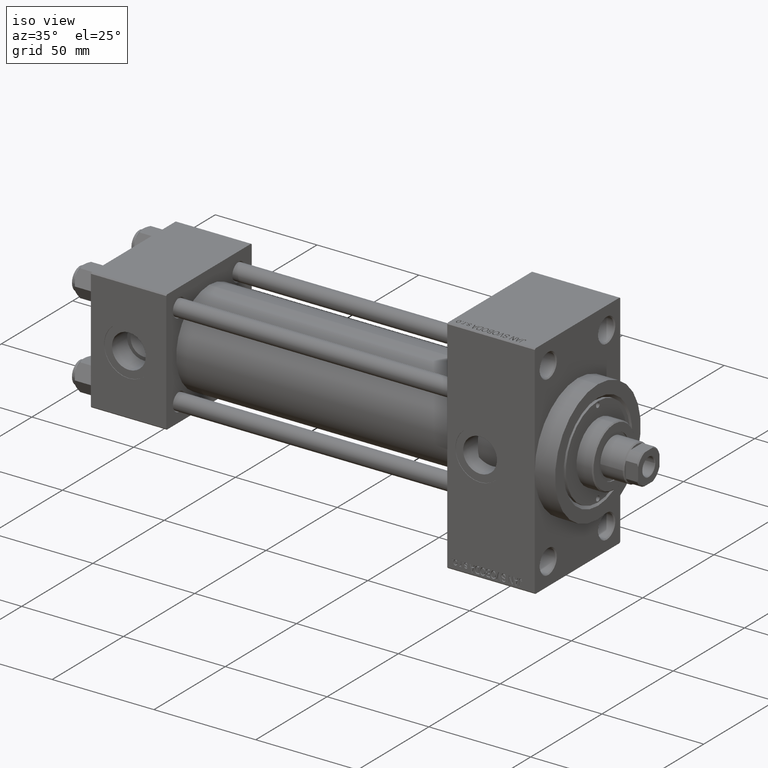
[diagram: clean part render]
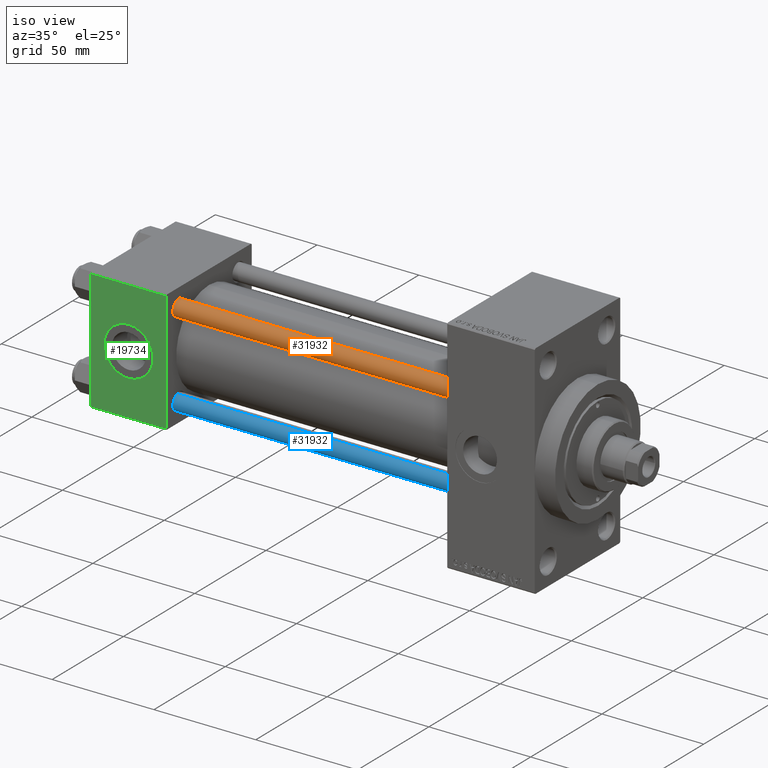
[diagram: same view with three faces highlighted in distinct colors, each labeled with its STEP entity id]
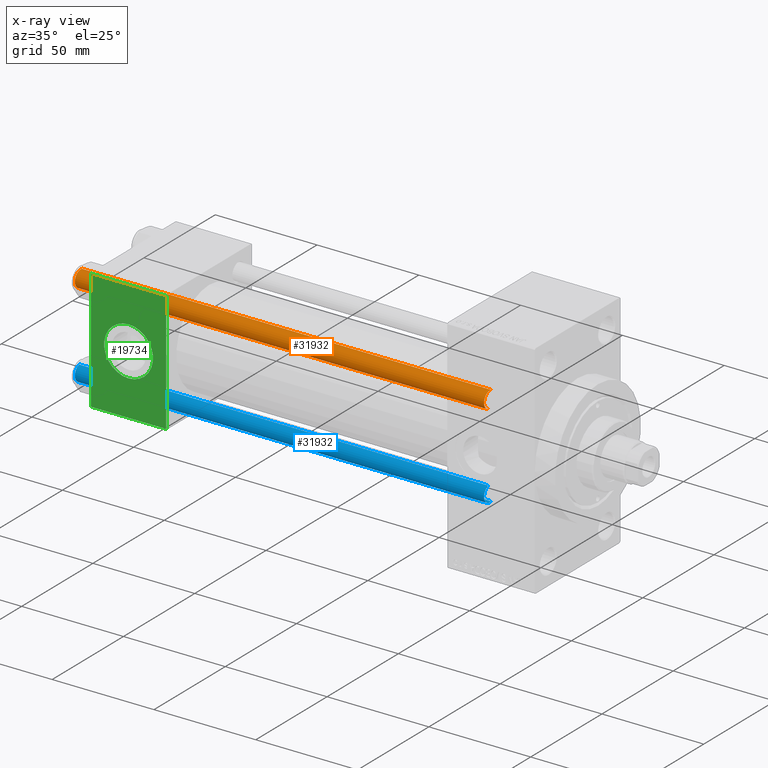
[diagram: x-ray of the same camera — body ghosted, the three highlighted faces saturated]
A machine part, iso view with three faces highlighted in distinct colors.
The next image is the same camera in x-ray (body ghosted, the three faces saturated) — at least one of them is partly hidden behind the body in this view.
Their STEP definitions:

[orange] entity #31932 — the highlighted cylindrical surface (edge-blend (fillet) strip) has radius 4 mm, axis along (1, 0, 0).
#1226 = CARTESIAN_POINT ( 'NONE',  ( 0.000000000000000000, 0.000000000000000000, 202.0000000000000000 ) ) ;
#1480 = CYLINDRICAL_SURFACE ( 'NONE', #7616, 4.000000000000000000 ) ;
#1617 = ORIENTED_EDGE ( 'NONE', *, *, #7759, .T. ) ;
#6934 = EDGE_LOOP ( 'NONE', ( #32972, #7963, #1617, #47425 ) ) ;
#7370 = AXIS2_PLACEMENT_3D ( 'NONE', #26897, #8624, #42653 ) ;
#7616 = AXIS2_PLACEMENT_3D ( 'NONE', #1226, #43292, #8504 ) ;
#7759 = EDGE_CURVE ( 'NONE', #14688, #46538, #37458, .T. ) ;
#7963 = ORIENTED_EDGE ( 'NONE', *, *, #48045, .T. ) ;
#8504 = DIRECTION ( 'NONE',  ( -1.000000000000000000, 0.000000000000000000, 0.000000000000000000 ) ) ;
#8624 = DIRECTION ( 'NONE',  ( 0.000000000000000000, 0.000000000000000000, -1.000000000000000000 ) ) ;
#8968 = DIRECTION ( 'NONE',  ( 1.000000000000000000, 0.000000000000000000, 0.000000000000000000 ) ) ;
#11984 = CARTESIAN_POINT ( 'NONE',  ( 0.000000000000000000, 0.000000000000000000, 0.5000000000000004441 ) ) ;
#12202 = CARTESIAN_POINT ( 'NONE',  ( 4.000000000000000000, 4.898587196589412829E-16, 202.0000000000000000 ) ) ;
#14636 = VERTEX_POINT ( 'NONE', #41360 ) ;
#14688 = VERTEX_POINT ( 'NONE', #45617 ) ;
#19179 = DIRECTION ( 'NONE',  ( -0.000000000000000000, -0.000000000000000000, -1.000000000000000000 ) ) ;
#19479 = DIRECTION ( 'NONE',  ( -0.000000000000000000, -0.000000000000000000, 1.000000000000000000 ) ) ;
#19918 = LINE ( 'NONE', #35197, #43398 ) ;
#22780 = DIRECTION ( 'NONE',  ( -0.000000000000000000, -0.000000000000000000, -1.000000000000000000 ) ) ;
#23371 = CIRCLE ( 'NONE', #7370, 4.000000000000000000 ) ;
#23439 = EDGE_CURVE ( 'NONE', #42286, #46538, #19918, .T. ) ;
#24458 = LINE ( 'NONE', #12202, #35158 ) ;
#25444 = EDGE_CURVE ( 'NONE', #42286, #14636, #23371, .T. ) ;
#25954 = CARTESIAN_POINT ( 'NONE',  ( -4.000000000000000000, 0.000000000000000000, 201.5000000000000000 ) ) ;
#26897 = CARTESIAN_POINT ( 'NONE',  ( 0.000000000000000000, 0.000000000000000000, 201.5000000000000000 ) ) ;
#31932 = ADVANCED_FACE ( 'NONE', ( #38066 ), #1480, .T. ) ;
#32972 = ORIENTED_EDGE ( 'NONE', *, *, #25444, .T. ) ;
#35158 = VECTOR ( 'NONE', #22780, 1000.000000000000000 ) ;
#35197 = CARTESIAN_POINT ( 'NONE',  ( -4.000000000000000000, 0.000000000000000000, 202.0000000000000000 ) ) ;
#36363 = CARTESIAN_POINT ( 'NONE',  ( -4.000000000000000000, 0.000000000000000000, 0.5000000000000004441 ) ) ;
#37458 = CIRCLE ( 'NONE', #47832, 4.000000000000000000 ) ;
#38066 = FACE_OUTER_BOUND ( 'NONE', #6934, .T. ) ;
#41360 = CARTESIAN_POINT ( 'NONE',  ( 4.000000000000000000, 4.898587196589412829E-16, 201.5000000000000000 ) ) ;
#42286 = VERTEX_POINT ( 'NONE', #25954 ) ;
#42653 = DIRECTION ( 'NONE',  ( 1.000000000000000000, 0.000000000000000000, 0.000000000000000000 ) ) ;
#43292 = DIRECTION ( 'NONE',  ( -0.000000000000000000, -0.000000000000000000, -1.000000000000000000 ) ) ;
#43398 = VECTOR ( 'NONE', #19179, 1000.000000000000000 ) ;
#45617 = CARTESIAN_POINT ( 'NONE',  ( 4.000000000000000000, 4.898587196589412829E-16, 0.5000000000000004441 ) ) ;
#46538 = VERTEX_POINT ( 'NONE', #36363 ) ;
#47425 = ORIENTED_EDGE ( 'NONE', *, *, #23439, .F. ) ;
#47832 = AXIS2_PLACEMENT_3D ( 'NONE', #11984, #19479, #8968 ) ;
#48045 = EDGE_CURVE ( 'NONE', #14636, #14688, #24458, .T. ) ;

[blue] entity #31932 — the highlighted cylindrical surface (edge-blend (fillet) strip) has radius 4 mm, axis along (-1, 0, 0).
#1226 = CARTESIAN_POINT ( 'NONE',  ( 0.000000000000000000, 0.000000000000000000, 202.0000000000000000 ) ) ;
#1480 = CYLINDRICAL_SURFACE ( 'NONE', #7616, 4.000000000000000000 ) ;
#1617 = ORIENTED_EDGE ( 'NONE', *, *, #7759, .T. ) ;
#6934 = EDGE_LOOP ( 'NONE', ( #32972, #7963, #1617, #47425 ) ) ;
#7370 = AXIS2_PLACEMENT_3D ( 'NONE', #26897, #8624, #42653 ) ;
#7616 = AXIS2_PLACEMENT_3D ( 'NONE', #1226, #43292, #8504 ) ;
#7759 = EDGE_CURVE ( 'NONE', #14688, #46538, #37458, .T. ) ;
#7963 = ORIENTED_EDGE ( 'NONE', *, *, #48045, .T. ) ;
#8504 = DIRECTION ( 'NONE',  ( -1.000000000000000000, 0.000000000000000000, 0.000000000000000000 ) ) ;
#8624 = DIRECTION ( 'NONE',  ( 0.000000000000000000, 0.000000000000000000, -1.000000000000000000 ) ) ;
#8968 = DIRECTION ( 'NONE',  ( 1.000000000000000000, 0.000000000000000000, 0.000000000000000000 ) ) ;
#11984 = CARTESIAN_POINT ( 'NONE',  ( 0.000000000000000000, 0.000000000000000000, 0.5000000000000004441 ) ) ;
#12202 = CARTESIAN_POINT ( 'NONE',  ( 4.000000000000000000, 4.898587196589412829E-16, 202.0000000000000000 ) ) ;
#14636 = VERTEX_POINT ( 'NONE', #41360 ) ;
#14688 = VERTEX_POINT ( 'NONE', #45617 ) ;
#19179 = DIRECTION ( 'NONE',  ( -0.000000000000000000, -0.000000000000000000, -1.000000000000000000 ) ) ;
#19479 = DIRECTION ( 'NONE',  ( -0.000000000000000000, -0.000000000000000000, 1.000000000000000000 ) ) ;
#19918 = LINE ( 'NONE', #35197, #43398 ) ;
#22780 = DIRECTION ( 'NONE',  ( -0.000000000000000000, -0.000000000000000000, -1.000000000000000000 ) ) ;
#23371 = CIRCLE ( 'NONE', #7370, 4.000000000000000000 ) ;
#23439 = EDGE_CURVE ( 'NONE', #42286, #46538, #19918, .T. ) ;
#24458 = LINE ( 'NONE', #12202, #35158 ) ;
#25444 = EDGE_CURVE ( 'NONE', #42286, #14636, #23371, .T. ) ;
#25954 = CARTESIAN_POINT ( 'NONE',  ( -4.000000000000000000, 0.000000000000000000, 201.5000000000000000 ) ) ;
#26897 = CARTESIAN_POINT ( 'NONE',  ( 0.000000000000000000, 0.000000000000000000, 201.5000000000000000 ) ) ;
#31932 = ADVANCED_FACE ( 'NONE', ( #38066 ), #1480, .T. ) ;
#32972 = ORIENTED_EDGE ( 'NONE', *, *, #25444, .T. ) ;
#35158 = VECTOR ( 'NONE', #22780, 1000.000000000000000 ) ;
#35197 = CARTESIAN_POINT ( 'NONE',  ( -4.000000000000000000, 0.000000000000000000, 202.0000000000000000 ) ) ;
#36363 = CARTESIAN_POINT ( 'NONE',  ( -4.000000000000000000, 0.000000000000000000, 0.5000000000000004441 ) ) ;
#37458 = CIRCLE ( 'NONE', #47832, 4.000000000000000000 ) ;
#38066 = FACE_OUTER_BOUND ( 'NONE', #6934, .T. ) ;
#41360 = CARTESIAN_POINT ( 'NONE',  ( 4.000000000000000000, 4.898587196589412829E-16, 201.5000000000000000 ) ) ;
#42286 = VERTEX_POINT ( 'NONE', #25954 ) ;
#42653 = DIRECTION ( 'NONE',  ( 1.000000000000000000, 0.000000000000000000, 0.000000000000000000 ) ) ;
#43292 = DIRECTION ( 'NONE',  ( -0.000000000000000000, -0.000000000000000000, -1.000000000000000000 ) ) ;
#43398 = VECTOR ( 'NONE', #19179, 1000.000000000000000 ) ;
#45617 = CARTESIAN_POINT ( 'NONE',  ( 4.000000000000000000, 4.898587196589412829E-16, 0.5000000000000004441 ) ) ;
#46538 = VERTEX_POINT ( 'NONE', #36363 ) ;
#47425 = ORIENTED_EDGE ( 'NONE', *, *, #23439, .F. ) ;
#47832 = AXIS2_PLACEMENT_3D ( 'NONE', #11984, #19479, #8968 ) ;
#48045 = EDGE_CURVE ( 'NONE', #14636, #14688, #24458, .T. ) ;

[green] entity #19734 — the highlighted planar face has unit normal (0, 1, 0).
#438 = DIRECTION ( 'NONE',  ( -0.000000000000000000, 1.000000000000000000, 0.000000000000000000 ) ) ;
#663 = DIRECTION ( 'NONE',  ( 0.000000000000000000, 0.000000000000000000, -1.000000000000000000 ) ) ;
#695 = VECTOR ( 'NONE', #1582, 1000.000000000000000 ) ;
#702 = ORIENTED_EDGE ( 'NONE', *, *, #31360, .F. ) ;
#917 = CARTESIAN_POINT ( 'NONE',  ( 37.00000000000000000, -30.00000000000000000, -29.50000000000001776 ) ) ;
#1187 = FACE_OUTER_BOUND ( 'NONE', #46544, .T. ) ;
#1359 = CARTESIAN_POINT ( 'NONE',  ( 37.00000000000000000, -30.00000000000000000, 29.49999999999999289 ) ) ;
#1582 = DIRECTION ( 'NONE',  ( 0.000000000000000000, 0.000000000000000000, -1.000000000000000000 ) ) ;
#3355 = VERTEX_POINT ( 'NONE', #21609 ) ;
#5507 = CIRCLE ( 'NONE', #12710, 12.00000000000000178 ) ;
#5826 = LINE ( 'NONE', #9607, #695 ) ;
#7523 = ORIENTED_EDGE ( 'NONE', *, *, #26574, .T. ) ;
#8854 = EDGE_CURVE ( 'NONE', #37754, #36887, #5507, .T. ) ;
#8929 = EDGE_CURVE ( 'NONE', #17032, #40009, #5826, .T. ) ;
#9607 = CARTESIAN_POINT ( 'NONE',  ( 37.00000000000000000, -30.00000000000000000, 29.99999999999999289 ) ) ;
#10583 = CARTESIAN_POINT ( 'NONE',  ( 18.50000000000000000, -30.00000000000000000, -12.00000000000000178 ) ) ;
#10756 = EDGE_CURVE ( 'NONE', #17032, #27254, #46676, .T. ) ;
#11431 = VECTOR ( 'NONE', #40400, 1000.000000000000000 ) ;
#11450 = CARTESIAN_POINT ( 'NONE',  ( 0.000000000000000000, -30.00000000000000000, 29.99999999999999289 ) ) ;
#12710 = AXIS2_PLACEMENT_3D ( 'NONE', #23151, #38429, #46653 ) ;
#12740 = PLANE ( 'NONE',  #27300 ) ;
#16193 = LINE ( 'NONE', #11450, #38867 ) ;
#16537 = ORIENTED_EDGE ( 'NONE', *, *, #10756, .T. ) ;
#17032 = VERTEX_POINT ( 'NONE', #46326 ) ;
#19734 = ADVANCED_FACE ( 'NONE', ( #28004, #1187 ), #12740, .F. ) ;
#20204 = CARTESIAN_POINT ( 'NONE',  ( 18.50000000000000000, -30.00000000000000000, 0.000000000000000000 ) ) ;
#21609 = CARTESIAN_POINT ( 'NONE',  ( 0.000000000000000000, -30.00000000000000000, -29.50000000000001776 ) ) ;
#23151 = CARTESIAN_POINT ( 'NONE',  ( 18.50000000000000000, -30.00000000000000000, 0.000000000000000000 ) ) ;
#24175 = DIRECTION ( 'NONE',  ( -1.000000000000000000, 0.000000000000000000, 0.000000000000000000 ) ) ;
#24701 = VECTOR ( 'NONE', #24175, 1000.000000000000000 ) ;
#25991 = CARTESIAN_POINT ( 'NONE',  ( 0.000000000000000000, -30.00000000000000000, 29.49999999999999289 ) ) ;
#26574 = EDGE_CURVE ( 'NONE', #3355, #40009, #44135, .T. ) ;
#27254 = VERTEX_POINT ( 'NONE', #25991 ) ;
#27300 = AXIS2_PLACEMENT_3D ( 'NONE', #38765, #438, #46751 ) ;
#28004 = FACE_BOUND ( 'NONE', #44998, .T. ) ;
#31360 = EDGE_CURVE ( 'NONE', #36887, #37754, #32408, .T. ) ;
#32408 = CIRCLE ( 'NONE', #41945, 12.00000000000000178 ) ;
#33748 = EDGE_CURVE ( 'NONE', #27254, #3355, #16193, .T. ) ;
#33776 = ORIENTED_EDGE ( 'NONE', *, *, #33748, .T. ) ;
#33875 = CARTESIAN_POINT ( 'NONE',  ( 18.50000000000000000, -30.00000000000000000, 12.00000000000000178 ) ) ;
#34230 = DIRECTION ( 'NONE',  ( 0.000000000000000000, 0.000000000000000000, -1.000000000000000000 ) ) ;
#36059 = ORIENTED_EDGE ( 'NONE', *, *, #8854, .F. ) ;
#36887 = VERTEX_POINT ( 'NONE', #10583 ) ;
#37754 = VERTEX_POINT ( 'NONE', #33875 ) ;
#38429 = DIRECTION ( 'NONE',  ( 0.000000000000000000, -1.000000000000000000, -8.673617379884036705E-17 ) ) ;
#38765 = CARTESIAN_POINT ( 'NONE',  ( 37.00000000000000000, -30.00000000000000000, 29.99999999999999289 ) ) ;
#38867 = VECTOR ( 'NONE', #34230, 1000.000000000000000 ) ;
#38985 = DIRECTION ( 'NONE',  ( 0.000000000000000000, -1.000000000000000000, -8.673617379884036705E-17 ) ) ;
#40009 = VERTEX_POINT ( 'NONE', #48540 ) ;
#40400 = DIRECTION ( 'NONE',  ( 1.000000000000000000, 0.000000000000000000, 0.000000000000000000 ) ) ;
#41945 = AXIS2_PLACEMENT_3D ( 'NONE', #20204, #38985, #663 ) ;
#43122 = ORIENTED_EDGE ( 'NONE', *, *, #8929, .F. ) ;
#44135 = LINE ( 'NONE', #917, #11431 ) ;
#44998 = EDGE_LOOP ( 'NONE', ( #702, #36059 ) ) ;
#46326 = CARTESIAN_POINT ( 'NONE',  ( 37.00000000000000000, -30.00000000000000000, 29.49999999999999289 ) ) ;
#46544 = EDGE_LOOP ( 'NONE', ( #33776, #7523, #43122, #16537 ) ) ;
#46653 = DIRECTION ( 'NONE',  ( 0.000000000000000000, 0.000000000000000000, -1.000000000000000000 ) ) ;
#46676 = LINE ( 'NONE', #1359, #24701 ) ;
#46751 = DIRECTION ( 'NONE',  ( 0.000000000000000000, -0.000000000000000000, 1.000000000000000000 ) ) ;
#48540 = CARTESIAN_POINT ( 'NONE',  ( 37.00000000000000000, -30.00000000000000000, -29.50000000000001776 ) ) ;